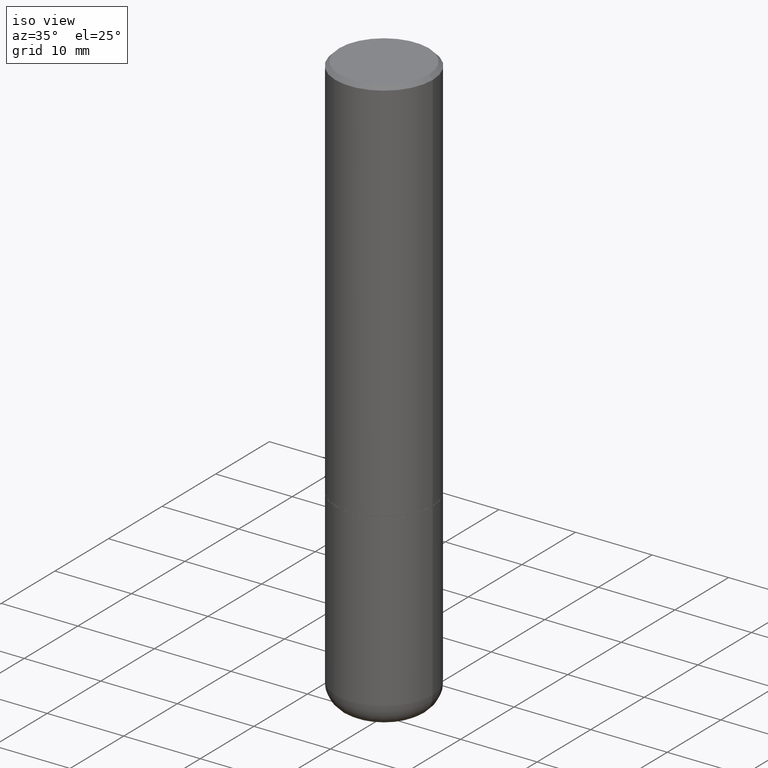
[diagram: clean part render]
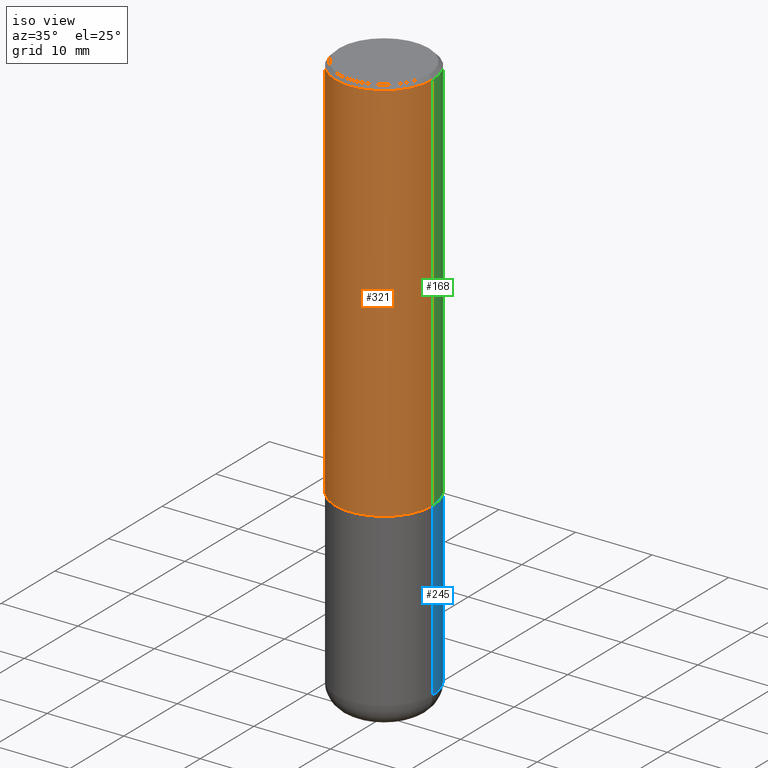
[diagram: same view with three faces highlighted in distinct colors, each labeled with its STEP entity id]
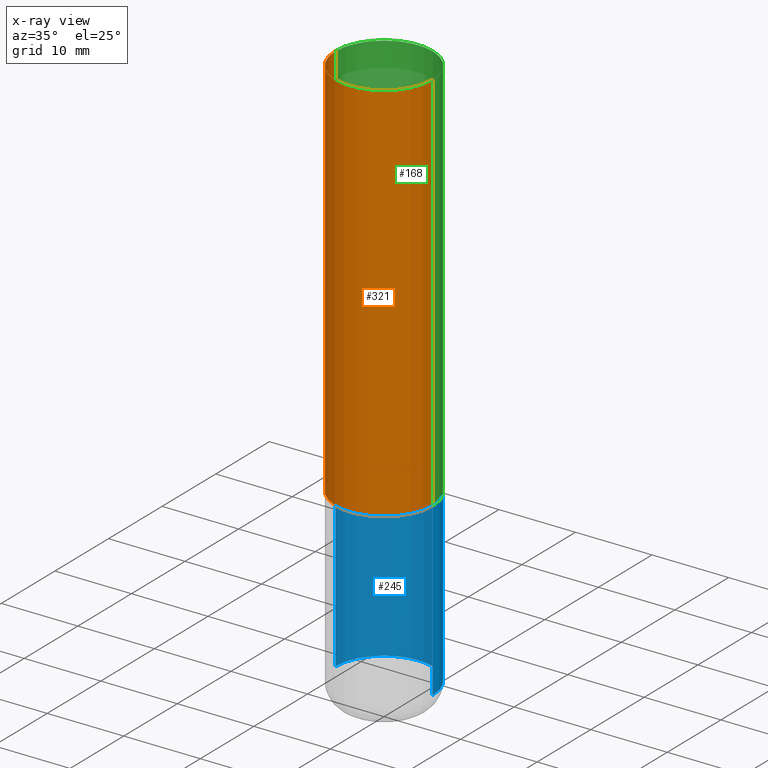
[diagram: x-ray of the same camera — body ghosted, the three highlighted faces saturated]
A machine part, iso view with three faces highlighted in distinct colors.
The next image is the same camera in x-ray (body ghosted, the three faces saturated) — at least one of them is partly hidden behind the body in this view.
Their STEP definitions:

[orange] entity #321 — the highlighted cylindrical surface (partial cylindrical patch) has radius 6.35 mm, axis along (-0, 0, 1).
#5 = CARTESIAN_POINT ( 'NONE',  ( -0.2500000000000001110, 1.776356839400251254E-15, -1.229733772563727146E-29 ) ) ;
#39 = CARTESIAN_POINT ( 'NONE',  ( -0.2500000000000000000, 1.675911042644703577E-15, -0.02000000000000005593 ) ) ;
#41 = AXIS2_PLACEMENT_3D ( 'NONE', #116, #408, #241 ) ;
#63 = VERTEX_POINT ( 'NONE', #272 ) ;
#67 = EDGE_LOOP ( 'NONE', ( #414, #254, #287, #133 ) ) ;
#74 = DIRECTION ( 'NONE',  ( -2.445468806185136877E-29, 3.491481338843145188E-15, 1.000000000000000000 ) ) ;
#77 = DIRECTION ( 'NONE',  ( 1.000000000000000000, -6.982962677686266711E-15, 0.000000000000000000 ) ) ;
#80 = EDGE_CURVE ( 'NONE', #97, #63, #104, .T. ) ;
#83 = DIRECTION ( 'NONE',  ( -2.445468806185136877E-29, 3.491481338843145188E-15, 1.000000000000000000 ) ) ;
#85 = CARTESIAN_POINT ( 'NONE',  ( 0.2500000000000001110, -1.745740669421567664E-15, 1.219044193948984649E-29 ) ) ;
#97 = VERTEX_POINT ( 'NONE', #39 ) ;
#104 = CIRCLE ( 'NONE', #159, 0.2500000000000000000 ) ;
#116 = CARTESIAN_POINT ( 'NONE',  ( 0.000000000000000000, 0.000000000000000000, 0.000000000000000000 ) ) ;
#133 = ORIENTED_EDGE ( 'NONE', *, *, #80, .F. ) ;
#148 = DIRECTION ( 'NONE',  ( -2.445468806185136597E-29, 3.491481338843145583E-15, 1.000000000000000000 ) ) ;
#159 = AXIS2_PLACEMENT_3D ( 'NONE', #396, #304, #77 ) ;
#160 = VERTEX_POINT ( 'NONE', #303 ) ;
#164 = EDGE_CURVE ( 'NONE', #160, #97, #401, .T. ) ;
#178 = CARTESIAN_POINT ( 'NONE',  ( 0.2500000000000002220, -8.725211865769017202E-15, -1.999000000000000110 ) ) ;
#216 = VERTEX_POINT ( 'NONE', #178 ) ;
#235 = EDGE_CURVE ( 'NONE', #216, #63, #338, .T. ) ;
#241 = DIRECTION ( 'NONE',  ( 1.000000000000000000, -6.982962677686267499E-15, 4.876176775795936353E-29 ) ) ;
#254 = ORIENTED_EDGE ( 'NONE', *, *, #285, .T. ) ;
#272 = CARTESIAN_POINT ( 'NONE',  ( 0.2500000000000000000, -1.784954126219746189E-15, -0.02000000000000005593 ) ) ;
#276 = CYLINDRICAL_SURFACE ( 'NONE', #41, 0.2500000000000001110 ) ;
#285 = EDGE_CURVE ( 'NONE', #160, #216, #337, .T. ) ;
#287 = ORIENTED_EDGE ( 'NONE', *, *, #235, .T. ) ;
#303 = CARTESIAN_POINT ( 'NONE',  ( -0.2500000000000002220, -1.748293572161901516E-15, -1.999000000000000110 ) ) ;
#304 = DIRECTION ( 'NONE',  ( -2.445468806185136597E-29, 3.491481338843145583E-15, 1.000000000000000000 ) ) ;
#321 = ADVANCED_FACE ( 'NONE', ( #405 ), #276, .T. ) ;
#337 = CIRCLE ( 'NONE', #384, 0.2500000000000002220 ) ;
#338 = LINE ( 'NONE', #85, #397 ) ;
#369 = CARTESIAN_POINT ( 'NONE',  ( 4.888492143564088712E-29, -6.979471196347448158E-15, -1.999000000000000110 ) ) ;
#371 = DIRECTION ( 'NONE',  ( 1.000000000000000000, -6.982962677686268288E-15, 0.000000000000000000 ) ) ;
#384 = AXIS2_PLACEMENT_3D ( 'NONE', #369, #148, #371 ) ;
#396 = CARTESIAN_POINT ( 'NONE',  ( 4.890937612370287172E-31, -6.982962677686310098E-17, -0.02000000000000005593 ) ) ;
#397 = VECTOR ( 'NONE', #83, 39.37007874015748143 ) ;
#398 = VECTOR ( 'NONE', #74, 39.37007874015748143 ) ;
#401 = LINE ( 'NONE', #5, #398 ) ;
#405 = FACE_OUTER_BOUND ( 'NONE', #67, .T. ) ;
#408 = DIRECTION ( 'NONE',  ( -2.445468806185136597E-29, 3.491481338843145583E-15, 1.000000000000000000 ) ) ;
#414 = ORIENTED_EDGE ( 'NONE', *, *, #164, .F. ) ;

[blue] entity #245 — the highlighted cylindrical surface (partial cylindrical patch) has radius 6.35 mm, axis along (-0, 0, 1).
#1 = AXIS2_PLACEMENT_3D ( 'NONE', #264, #10, #138 ) ;
#2 = VERTEX_POINT ( 'NONE', #92 ) ;
#4 = VERTEX_POINT ( 'NONE', #383 ) ;
#10 = DIRECTION ( 'NONE',  ( -2.445468806185136597E-29, 3.491481338843145583E-15, 1.000000000000000000 ) ) ;
#14 = EDGE_CURVE ( 'NONE', #2, #258, #215, .T. ) ;
#49 = DIRECTION ( 'NONE',  ( 1.000000000000000000, -6.982962677686266711E-15, 4.876176775795935793E-29 ) ) ;
#61 = VERTEX_POINT ( 'NONE', #78 ) ;
#78 = CARTESIAN_POINT ( 'NONE',  ( -0.2499999999999999722, -8.279109416468010833E-15, -2.880000000000000338 ) ) ;
#86 = CYLINDRICAL_SURFACE ( 'NONE', #89, 0.2500000000000000000 ) ;
#89 = AXIS2_PLACEMENT_3D ( 'NONE', #370, #247, #49 ) ;
#92 = CARTESIAN_POINT ( 'NONE',  ( 0.2499999999999999722, -1.180120692528982640E-14, -2.880000000000000338 ) ) ;
#102 = EDGE_CURVE ( 'NONE', #258, #4, #316, .T. ) ;
#105 = CARTESIAN_POINT ( 'NONE',  ( 7.042950161813194609E-29, -1.005546625586826130E-14, -2.880000000000000338 ) ) ;
#107 = EDGE_LOOP ( 'NONE', ( #195, #155, #386, #388 ) ) ;
#109 = DIRECTION ( 'NONE',  ( -2.445468806185136877E-29, 3.491481338843145188E-15, 1.000000000000000000 ) ) ;
#128 = EDGE_CURVE ( 'NONE', #61, #4, #331, .T. ) ;
#135 = CARTESIAN_POINT ( 'NONE',  ( 0.2500000000000000000, -1.745740669421566678E-15, 1.219044193948983948E-29 ) ) ;
#138 = DIRECTION ( 'NONE',  ( 1.000000000000000000, -6.982962677686266711E-15, 0.000000000000000000 ) ) ;
#155 = ORIENTED_EDGE ( 'NONE', *, *, #128, .T. ) ;
#162 = DIRECTION ( 'NONE',  ( 1.000000000000000000, -6.982962677686262766E-15, 0.000000000000000000 ) ) ;
#179 = EDGE_CURVE ( 'NONE', #2, #61, #292, .T. ) ;
#195 = ORIENTED_EDGE ( 'NONE', *, *, #179, .T. ) ;
#196 = VECTOR ( 'NONE', #109, 39.37007874015748143 ) ;
#208 = FACE_OUTER_BOUND ( 'NONE', #107, .T. ) ;
#215 = LINE ( 'NONE', #135, #196 ) ;
#245 = ADVANCED_FACE ( 'NONE', ( #208 ), #86, .T. ) ;
#247 = DIRECTION ( 'NONE',  ( -2.445468806185136597E-29, 3.491481338843145583E-15, 1.000000000000000000 ) ) ;
#250 = VECTOR ( 'NONE', #302, 39.37007874015748143 ) ;
#258 = VERTEX_POINT ( 'NONE', #273 ) ;
#264 = CARTESIAN_POINT ( 'NONE',  ( 4.890937612370273754E-29, -6.982962677686291954E-15, -2.000000000000000444 ) ) ;
#273 = CARTESIAN_POINT ( 'NONE',  ( 0.2500000000000000000, -8.728703347107858632E-15, -2.000000000000000444 ) ) ;
#277 = AXIS2_PLACEMENT_3D ( 'NONE', #105, #329, #162 ) ;
#292 = CIRCLE ( 'NONE', #277, 0.2500000000000000000 ) ;
#298 = CARTESIAN_POINT ( 'NONE',  ( -0.2500000000000000000, 1.776356839400250465E-15, -1.229733772563726445E-29 ) ) ;
#302 = DIRECTION ( 'NONE',  ( -2.445468806185136877E-29, 3.491481338843145188E-15, 1.000000000000000000 ) ) ;
#316 = CIRCLE ( 'NONE', #1, 0.2500000000000000000 ) ;
#329 = DIRECTION ( 'NONE',  ( -2.445468806185136597E-29, 3.491481338843145583E-15, 1.000000000000000000 ) ) ;
#331 = LINE ( 'NONE', #298, #250 ) ;
#370 = CARTESIAN_POINT ( 'NONE',  ( 0.000000000000000000, 0.000000000000000000, 0.000000000000000000 ) ) ;
#383 = CARTESIAN_POINT ( 'NONE',  ( -0.2500000000000000000, -6.742857627377025372E-15, -2.000000000000000444 ) ) ;
#386 = ORIENTED_EDGE ( 'NONE', *, *, #102, .F. ) ;
#388 = ORIENTED_EDGE ( 'NONE', *, *, #14, .F. ) ;

[green] entity #168 — the highlighted cylindrical surface (partial cylindrical patch) has radius 6.35 mm, axis along (-0, 0, 1).
#5 = CARTESIAN_POINT ( 'NONE',  ( -0.2500000000000001110, 1.776356839400251254E-15, -1.229733772563727146E-29 ) ) ;
#18 = CARTESIAN_POINT ( 'NONE',  ( 4.890937612370287172E-31, -6.982962677686310098E-17, -0.02000000000000005593 ) ) ;
#26 = EDGE_CURVE ( 'NONE', #216, #160, #242, .T. ) ;
#39 = CARTESIAN_POINT ( 'NONE',  ( -0.2500000000000000000, 1.675911042644703577E-15, -0.02000000000000005593 ) ) ;
#63 = VERTEX_POINT ( 'NONE', #272 ) ;
#74 = DIRECTION ( 'NONE',  ( -2.445468806185136877E-29, 3.491481338843145188E-15, 1.000000000000000000 ) ) ;
#83 = DIRECTION ( 'NONE',  ( -2.445468806185136877E-29, 3.491481338843145188E-15, 1.000000000000000000 ) ) ;
#85 = CARTESIAN_POINT ( 'NONE',  ( 0.2500000000000001110, -1.745740669421567664E-15, 1.219044193948984649E-29 ) ) ;
#97 = VERTEX_POINT ( 'NONE', #39 ) ;
#123 = AXIS2_PLACEMENT_3D ( 'NONE', #142, #190, #167 ) ;
#125 = ORIENTED_EDGE ( 'NONE', *, *, #235, .F. ) ;
#142 = CARTESIAN_POINT ( 'NONE',  ( 4.888492143564088712E-29, -6.979471196347448158E-15, -1.999000000000000110 ) ) ;
#158 = AXIS2_PLACEMENT_3D ( 'NONE', #239, #232, #192 ) ;
#160 = VERTEX_POINT ( 'NONE', #303 ) ;
#163 = CYLINDRICAL_SURFACE ( 'NONE', #158, 0.2500000000000001110 ) ;
#164 = EDGE_CURVE ( 'NONE', #160, #97, #401, .T. ) ;
#167 = DIRECTION ( 'NONE',  ( 1.000000000000000000, -6.982962677686268288E-15, 0.000000000000000000 ) ) ;
#168 = ADVANCED_FACE ( 'NONE', ( #267 ), #163, .T. ) ;
#177 = DIRECTION ( 'NONE',  ( -2.445468806185136597E-29, 3.491481338843145583E-15, 1.000000000000000000 ) ) ;
#178 = CARTESIAN_POINT ( 'NONE',  ( 0.2500000000000002220, -8.725211865769017202E-15, -1.999000000000000110 ) ) ;
#190 = DIRECTION ( 'NONE',  ( -2.445468806185136597E-29, 3.491481338843145583E-15, 1.000000000000000000 ) ) ;
#192 = DIRECTION ( 'NONE',  ( 1.000000000000000000, -6.982962677686267499E-15, 4.876176775795936353E-29 ) ) ;
#216 = VERTEX_POINT ( 'NONE', #178 ) ;
#222 = ORIENTED_EDGE ( 'NONE', *, *, #26, .T. ) ;
#227 = AXIS2_PLACEMENT_3D ( 'NONE', #18, #177, #280 ) ;
#230 = EDGE_LOOP ( 'NONE', ( #222, #296, #381, #125 ) ) ;
#232 = DIRECTION ( 'NONE',  ( -2.445468806185136597E-29, 3.491481338843145583E-15, 1.000000000000000000 ) ) ;
#235 = EDGE_CURVE ( 'NONE', #216, #63, #338, .T. ) ;
#239 = CARTESIAN_POINT ( 'NONE',  ( 0.000000000000000000, 0.000000000000000000, 0.000000000000000000 ) ) ;
#242 = CIRCLE ( 'NONE', #123, 0.2500000000000002220 ) ;
#267 = FACE_OUTER_BOUND ( 'NONE', #230, .T. ) ;
#272 = CARTESIAN_POINT ( 'NONE',  ( 0.2500000000000000000, -1.784954126219746189E-15, -0.02000000000000005593 ) ) ;
#275 = EDGE_CURVE ( 'NONE', #63, #97, #350, .T. ) ;
#280 = DIRECTION ( 'NONE',  ( 1.000000000000000000, -6.982962677686266711E-15, 0.000000000000000000 ) ) ;
#296 = ORIENTED_EDGE ( 'NONE', *, *, #164, .T. ) ;
#303 = CARTESIAN_POINT ( 'NONE',  ( -0.2500000000000002220, -1.748293572161901516E-15, -1.999000000000000110 ) ) ;
#338 = LINE ( 'NONE', #85, #397 ) ;
#350 = CIRCLE ( 'NONE', #227, 0.2500000000000000000 ) ;
#381 = ORIENTED_EDGE ( 'NONE', *, *, #275, .F. ) ;
#397 = VECTOR ( 'NONE', #83, 39.37007874015748143 ) ;
#398 = VECTOR ( 'NONE', #74, 39.37007874015748143 ) ;
#401 = LINE ( 'NONE', #5, #398 ) ;